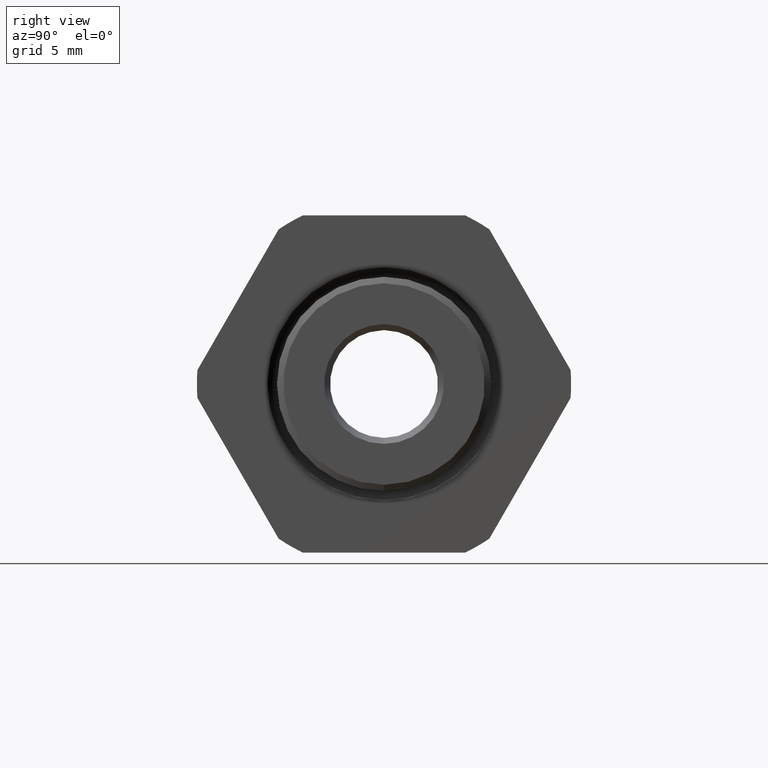
[diagram: clean part render]
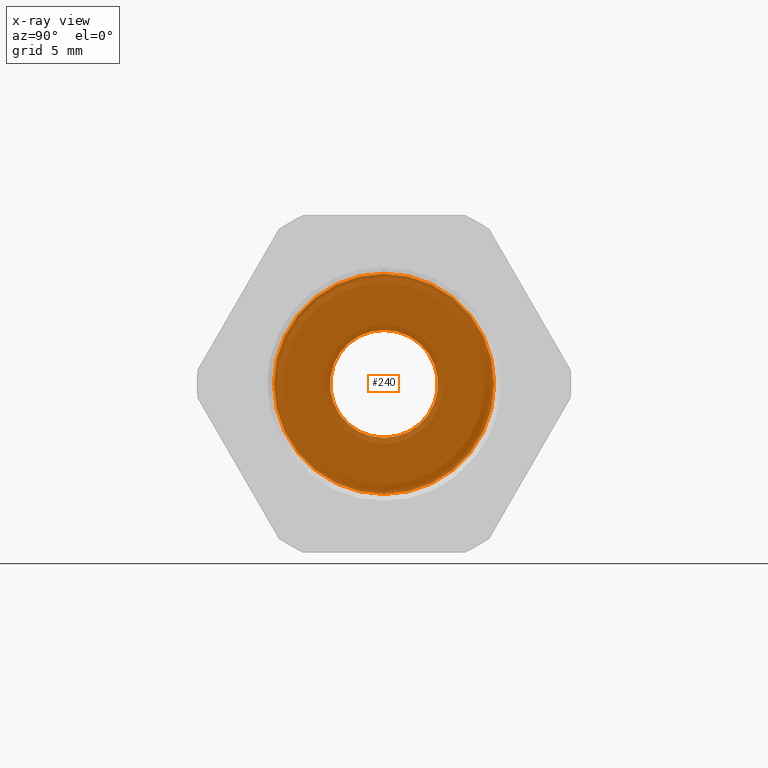
[diagram: x-ray — body ghosted, one internal face saturated and labeled with its STEP entity id]
A machine part, right view, then the same camera in x-ray: the body is ghosted and one INTERNAL B-rep face — a face not visible from any outside direction — is saturated and labeled: STEP entity #240.
In plain terms, the highlighted planar face has unit normal (1, 0, 0).
Its self-contained STEP definition (entity closure, byte-faithful):
#109 = EDGE_CURVE ( 'NONE', #167, #110, #897, .T. ) ;
#110 = VERTEX_POINT ( 'NONE', #893 ) ;
#114 = EDGE_CURVE ( 'NONE', #116, #117, #888, .T. ) ;
#116 = VERTEX_POINT ( 'NONE', #942 ) ;
#117 = VERTEX_POINT ( 'NONE', #941 ) ;
#167 = VERTEX_POINT ( 'NONE', #1014 ) ;
#224 = EDGE_CURVE ( 'NONE', #117, #116, #1168, .T. ) ;
#231 = ORIENTED_EDGE ( 'NONE', *, *, #114, .T. ) ;
#233 = EDGE_CURVE ( 'NONE', #110, #167, #1149, .T. ) ;
#240 = ADVANCED_FACE ( 'NONE', ( #1205, #1204 ), #1203, .T. ) ;
#247 = ORIENTED_EDGE ( 'NONE', *, *, #233, .F. ) ;
#257 = ORIENTED_EDGE ( 'NONE', *, *, #109, .F. ) ;
#258 = EDGE_LOOP ( 'NONE', ( #231, #262 ) ) ;
#262 = ORIENTED_EDGE ( 'NONE', *, *, #224, .T. ) ;
#263 = EDGE_LOOP ( 'NONE', ( #247, #257 ) ) ;
#888 = CIRCLE ( 'NONE', #950, 0.2450000000000000500 ) ;
#893 = CARTESIAN_POINT ( 'NONE',  ( -0.7469291338582678700, 0.0000000000000000000, -0.1199999999999999800 ) ) ;
#894 = DIRECTION ( 'NONE',  ( 0.0000000000000000000, 0.0000000000000000000, -1.000000000000000000 ) ) ;
#895 = DIRECTION ( 'NONE',  ( 1.000000000000000000, 0.0000000000000000000, 0.0000000000000000000 ) ) ;
#896 = AXIS2_PLACEMENT_3D ( 'NONE', #901, #895, #894 ) ;
#897 = CIRCLE ( 'NONE', #896, 0.1199999999999999800 ) ;
#901 = CARTESIAN_POINT ( 'NONE',  ( -0.7469291338582678700, 0.0000000000000000000, 0.0000000000000000000 ) ) ;
#941 = CARTESIAN_POINT ( 'NONE',  ( -0.7469291338582678700, 3.000384657911016100E-017, 0.2450000000000000500 ) ) ;
#942 = CARTESIAN_POINT ( 'NONE',  ( -0.7469291338582678700, 0.0000000000000000000, -0.2450000000000000500 ) ) ;
#947 = DIRECTION ( 'NONE',  ( 0.0000000000000000000, 0.0000000000000000000, -1.000000000000000000 ) ) ;
#948 = DIRECTION ( 'NONE',  ( 1.000000000000000000, 0.0000000000000000000, 0.0000000000000000000 ) ) ;
#949 = CARTESIAN_POINT ( 'NONE',  ( -0.7469291338582678700, 0.0000000000000000000, 0.0000000000000000000 ) ) ;
#950 = AXIS2_PLACEMENT_3D ( 'NONE', #949, #948, #947 ) ;
#1014 = CARTESIAN_POINT ( 'NONE',  ( -0.7469291338582678700, 1.469576158976823700E-017, 0.1200000000000000000 ) ) ;
#1145 = DIRECTION ( 'NONE',  ( 0.0000000000000000000, 0.0000000000000000000, -1.000000000000000000 ) ) ;
#1146 = DIRECTION ( 'NONE',  ( 1.000000000000000000, 0.0000000000000000000, 0.0000000000000000000 ) ) ;
#1147 = CARTESIAN_POINT ( 'NONE',  ( -0.7469291338582678700, 0.0000000000000000000, 0.0000000000000000000 ) ) ;
#1148 = AXIS2_PLACEMENT_3D ( 'NONE', #1147, #1146, #1145 ) ;
#1149 = CIRCLE ( 'NONE', #1148, 0.1199999999999999800 ) ;
#1164 = DIRECTION ( 'NONE',  ( 0.0000000000000000000, 0.0000000000000000000, -1.000000000000000000 ) ) ;
#1165 = DIRECTION ( 'NONE',  ( 1.000000000000000000, 0.0000000000000000000, 0.0000000000000000000 ) ) ;
#1166 = CARTESIAN_POINT ( 'NONE',  ( -0.7469291338582678700, 0.0000000000000000000, 0.0000000000000000000 ) ) ;
#1167 = AXIS2_PLACEMENT_3D ( 'NONE', #1166, #1165, #1164 ) ;
#1168 = CIRCLE ( 'NONE', #1167, 0.2450000000000000500 ) ;
#1198 = DIRECTION ( 'NONE',  ( 0.0000000000000000000, 0.0000000000000000000, -1.000000000000000000 ) ) ;
#1199 = DIRECTION ( 'NONE',  ( 1.000000000000000000, 0.0000000000000000000, 0.0000000000000000000 ) ) ;
#1200 = CARTESIAN_POINT ( 'NONE',  ( -0.7469291338582678700, 0.2450000000000000500, 0.0000000000000000000 ) ) ;
#1201 = AXIS2_PLACEMENT_3D ( 'NONE', #1200, #1199, #1198 ) ;
#1203 = PLANE ( 'NONE',  #1201 ) ;
#1204 = FACE_BOUND ( 'NONE', #263, .T. ) ;
#1205 = FACE_OUTER_BOUND ( 'NONE', #258, .T. ) ;